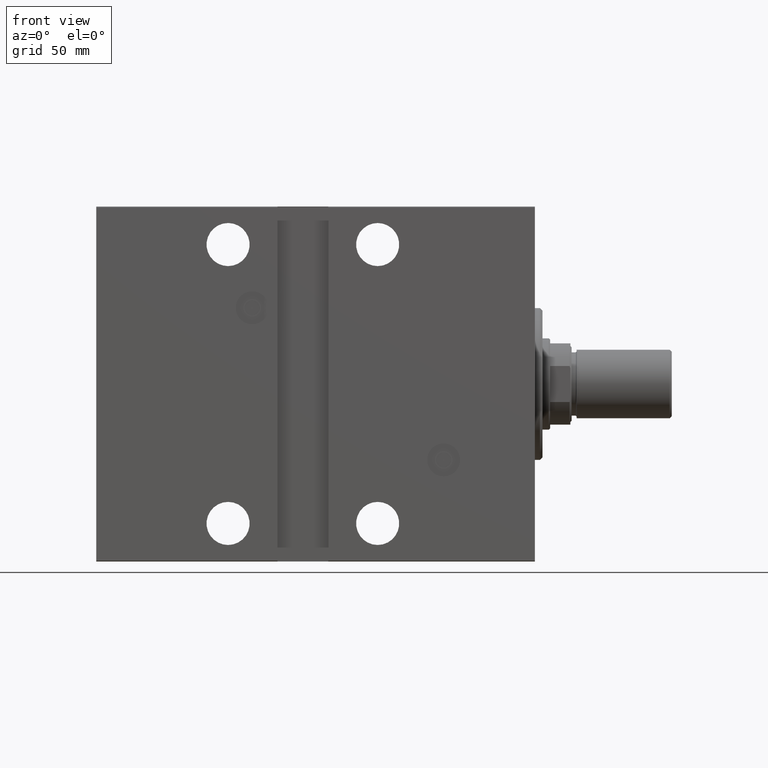
[diagram: clean part render]
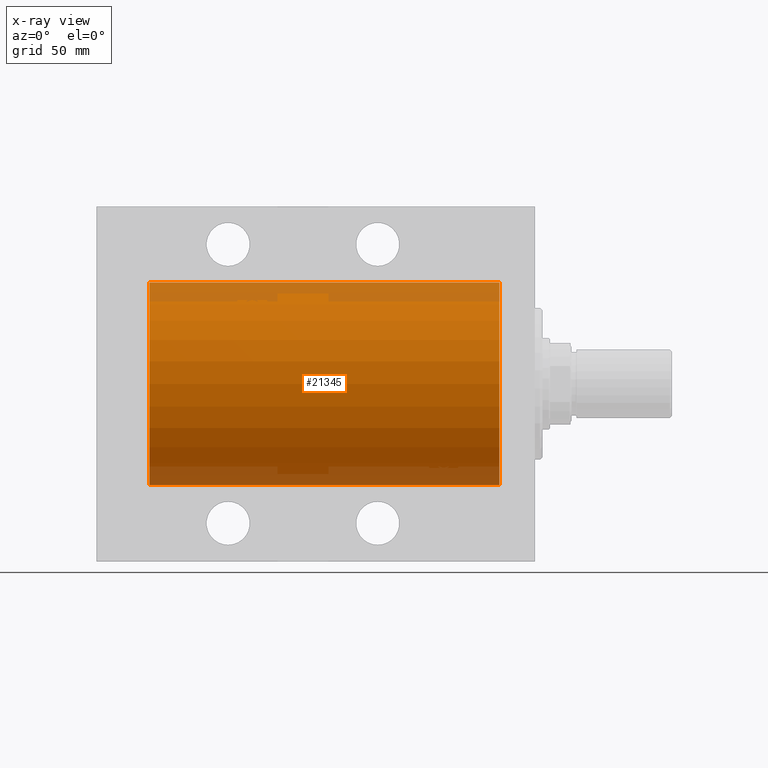
[diagram: x-ray — body ghosted, one internal face saturated and labeled with its STEP entity id]
A machine part, front view, then the same camera in x-ray: the body is ghosted and one INTERNAL B-rep face — a face not visible from any outside direction — is saturated and labeled: STEP entity #21345.
In plain terms, the highlighted cylindrical surface (partial cylindrical patch) has radius 40 mm, axis along (1, 0, -0).
Its self-contained STEP definition (entity closure, byte-faithful):
#2124 = DIRECTION ( 'NONE',  ( -1.000000000000000000, -0.000000000000000000, -0.000000000000000000 ) ) ;
#2260 = DIRECTION ( 'NONE',  ( -1.000000000000000000, -0.000000000000000000, -0.000000000000000000 ) ) ;
#5853 = FACE_OUTER_BOUND ( 'NONE', #17712, .T. ) ;
#6466 = VERTEX_POINT ( 'NONE', #26996 ) ;
#16067 = DIRECTION ( 'NONE',  ( 0.000000000000000000, 0.000000000000000000, 1.000000000000000000 ) ) ;
#16638 = CARTESIAN_POINT ( 'NONE',  ( 152.0000000000000000, 0.000000000000000000, 40.00000000000000000 ) ) ;
#16959 = EDGE_CURVE ( 'NONE', #6466, #20811, #20757, .T. ) ;
#17429 = VERTEX_POINT ( 'NONE', #35416 ) ;
#17712 = EDGE_LOOP ( 'NONE', ( #28279, #22156, #19421, #42089 ) ) ;
#18893 = AXIS2_PLACEMENT_3D ( 'NONE', #29335, #2260, #30221 ) ;
#19211 = DIRECTION ( 'NONE',  ( -1.000000000000000000, 0.000000000000000000, 0.000000000000000000 ) ) ;
#19421 = ORIENTED_EDGE ( 'NONE', *, *, #30838, .T. ) ;
#20757 = CIRCLE ( 'NONE', #37910, 40.00000000000000000 ) ;
#20811 = VERTEX_POINT ( 'NONE', #27013 ) ;
#21345 = ADVANCED_FACE ( 'NONE', ( #5853 ), #25964, .F. ) ;
#21816 = CARTESIAN_POINT ( 'NONE',  ( 13.99999999999998401, 0.000000000000000000, 0.000000000000000000 ) ) ;
#22156 = ORIENTED_EDGE ( 'NONE', *, *, #39360, .F. ) ;
#22749 = VERTEX_POINT ( 'NONE', #37368 ) ;
#23343 = DIRECTION ( 'NONE',  ( -1.000000000000000000, -0.000000000000000000, -0.000000000000000000 ) ) ;
#24949 = DIRECTION ( 'NONE',  ( 0.000000000000000000, 0.000000000000000000, 1.000000000000000000 ) ) ;
#25658 = AXIS2_PLACEMENT_3D ( 'NONE', #26141, #19211, #16067 ) ;
#25964 = CYLINDRICAL_SURFACE ( 'NONE', #18893, 40.00000000000000000 ) ;
#26141 = CARTESIAN_POINT ( 'NONE',  ( 152.0000000000000000, 0.000000000000000000, 0.000000000000000000 ) ) ;
#26273 = VECTOR ( 'NONE', #2124, 1000.000000000000000 ) ;
#26996 = CARTESIAN_POINT ( 'NONE',  ( 13.99999999999998401, 0.000000000000000000, 40.00000000000000000 ) ) ;
#27013 = CARTESIAN_POINT ( 'NONE',  ( 13.99999999999998401, 4.898587196589413026E-15, -40.00000000000000000 ) ) ;
#28279 = ORIENTED_EDGE ( 'NONE', *, *, #30825, .F. ) ;
#29335 = CARTESIAN_POINT ( 'NONE',  ( 152.0000000000000000, 0.000000000000000000, 0.000000000000000000 ) ) ;
#29856 = VECTOR ( 'NONE', #23343, 1000.000000000000000 ) ;
#30221 = DIRECTION ( 'NONE',  ( 0.000000000000000000, 0.000000000000000000, 1.000000000000000000 ) ) ;
#30699 = CIRCLE ( 'NONE', #25658, 40.00000000000000000 ) ;
#30825 = EDGE_CURVE ( 'NONE', #17429, #20811, #43721, .T. ) ;
#30838 = EDGE_CURVE ( 'NONE', #22749, #6466, #32781, .T. ) ;
#32781 = LINE ( 'NONE', #16638, #29856 ) ;
#35416 = CARTESIAN_POINT ( 'NONE',  ( 152.0000000000000000, 4.898587196589413026E-15, -40.00000000000000000 ) ) ;
#35465 = DIRECTION ( 'NONE',  ( -1.000000000000000000, 0.000000000000000000, 0.000000000000000000 ) ) ;
#36123 = CARTESIAN_POINT ( 'NONE',  ( 152.0000000000000000, 4.898587196589413026E-15, -40.00000000000000000 ) ) ;
#37368 = CARTESIAN_POINT ( 'NONE',  ( 152.0000000000000000, 0.000000000000000000, 40.00000000000000000 ) ) ;
#37910 = AXIS2_PLACEMENT_3D ( 'NONE', #21816, #35465, #24949 ) ;
#39360 = EDGE_CURVE ( 'NONE', #22749, #17429, #30699, .T. ) ;
#42089 = ORIENTED_EDGE ( 'NONE', *, *, #16959, .T. ) ;
#43721 = LINE ( 'NONE', #36123, #26273 ) ;